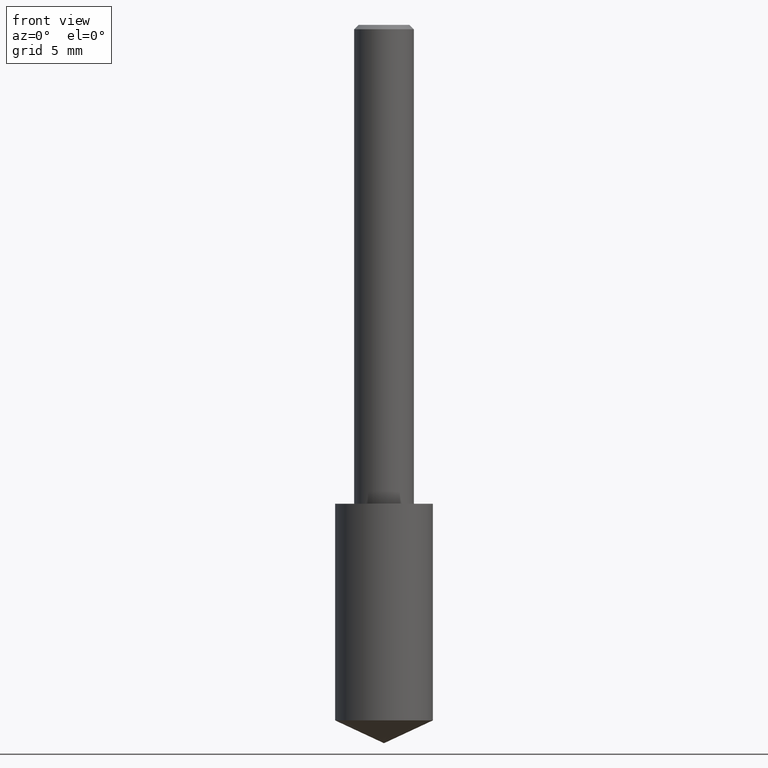
[diagram: clean part render]
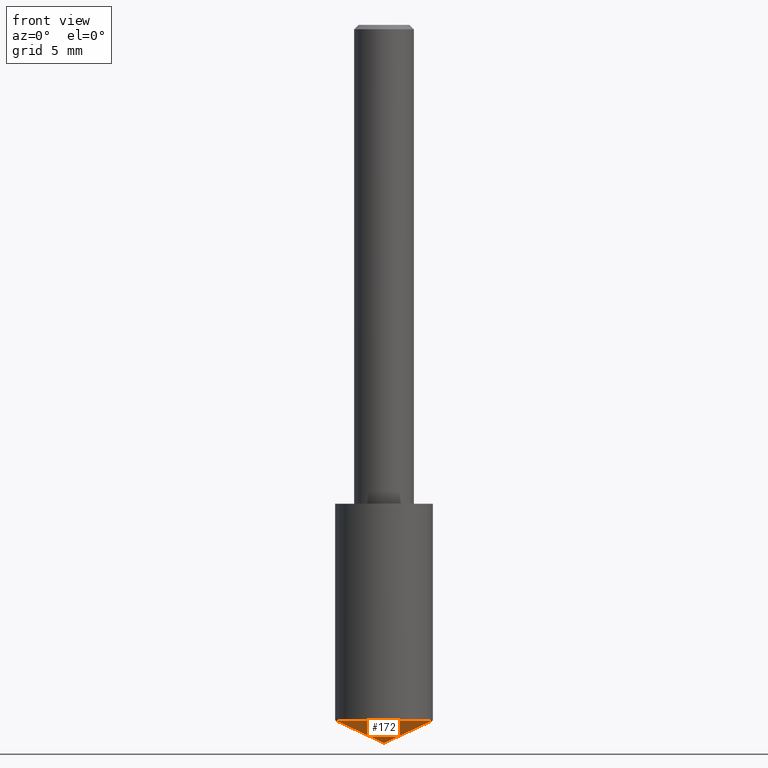
[diagram: same view with one face highlighted and labeled with its STEP entity id]
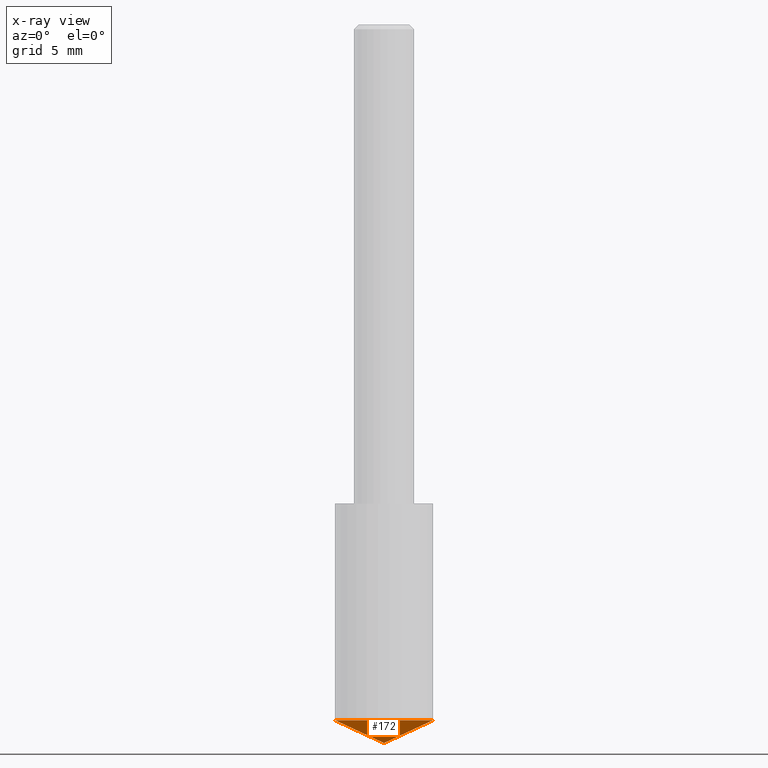
[diagram: x-ray of the same camera — body ghosted, the highlighted face saturated]
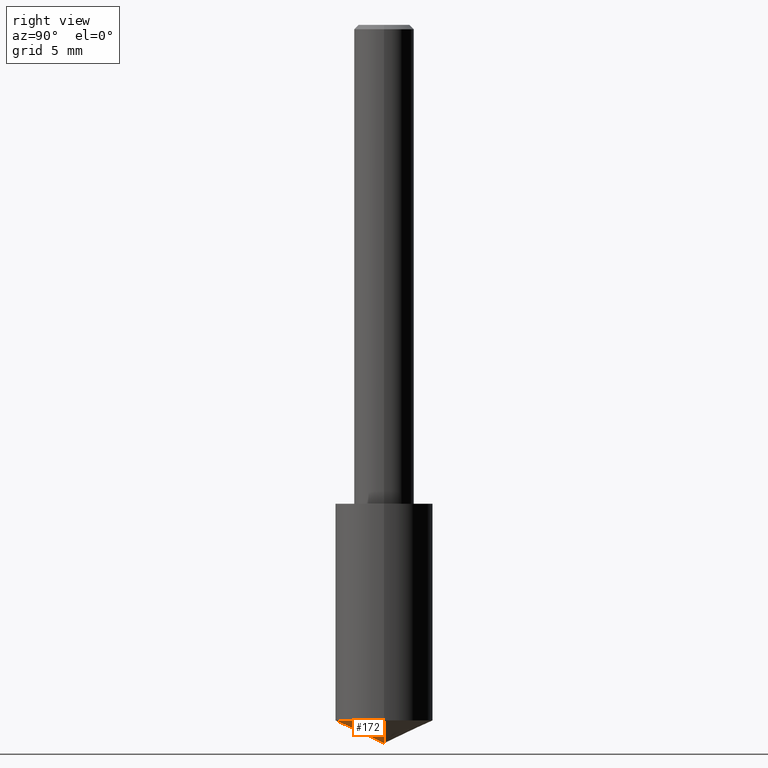
[diagram: same view with one face highlighted and labeled with its STEP entity id]
A machine part, front view. The second image highlights one B-rep face of the part: STEP entity #172.
The next image is the same camera in x-ray: the body ghosted, the highlighted face saturated — about 0% of this face is hidden behind the body in this view.
A second angle (right view) of the same face is appended — the face is thin or edge-on in the first view.
In plain terms, the highlighted conical surface has half-angle 65 deg.
Its self-contained STEP definition (entity closure, byte-faithful):
#9 = CARTESIAN_POINT ( 'NONE',  ( -0.1019999999999999796, -4.346401760155420845E-15, -1.452436618868190976 ) ) ;
#11 = ORIENTED_EDGE ( 'NONE', *, *, #274, .F. ) ;
#14 = VERTEX_POINT ( 'NONE', #284 ) ;
#27 = DIRECTION ( 'NONE',  ( -2.445468806185136597E-29, 3.491481338843145583E-15, 1.000000000000000000 ) ) ;
#29 = DIRECTION ( 'NONE',  ( 0.9063077870366522681, -4.853149677051413500E-15, 0.4226182617406944453 ) ) ;
#45 = ORIENTED_EDGE ( 'NONE', *, *, #93, .T. ) ;
#46 = EDGE_LOOP ( 'NONE', ( #330, #45, #11 ) ) ;
#61 = AXIS2_PLACEMENT_3D ( 'NONE', #291, #27, #238 ) ;
#67 = VERTEX_POINT ( 'NONE', #9 ) ;
#79 = LINE ( 'NONE', #320, #208 ) ;
#90 = DIRECTION ( 'NONE',  ( 1.000000000000000000, -6.982962677686266711E-15, 0.000000000000000000 ) ) ;
#93 = EDGE_CURVE ( 'NONE', #14, #97, #293, .T. ) ;
#96 = EDGE_CURVE ( 'NONE', #14, #67, #79, .T. ) ;
#97 = VERTEX_POINT ( 'NONE', #184 ) ;
#112 = CIRCLE ( 'NONE', #268, 0.1019999999999999934 ) ;
#129 = DIRECTION ( 'NONE',  ( -0.9063077870366522681, 7.915267918739014631E-15, 0.4226182617406944453 ) ) ;
#160 = CARTESIAN_POINT ( 'NONE',  ( 3.668203209277704895E-29, -5.237222008264718177E-15, -1.500000000000000222 ) ) ;
#172 = ADVANCED_FACE ( 'NONE', ( #209 ), #298, .T. ) ;
#177 = VECTOR ( 'NONE', #29, 39.37007874015748854 ) ;
#184 = CARTESIAN_POINT ( 'NONE',  ( 0.1019999999999999796, -5.783417543754722378E-15, -1.452436618868190976 ) ) ;
#208 = VECTOR ( 'NONE', #129, 39.37007874015748854 ) ;
#209 = FACE_OUTER_BOUND ( 'NONE', #46, .T. ) ;
#238 = DIRECTION ( 'NONE',  ( 1.000000000000000000, -6.982962677686266711E-15, 0.000000000000000000 ) ) ;
#245 = DIRECTION ( 'NONE',  ( -2.445468806185136597E-29, 3.491481338843145583E-15, 1.000000000000000000 ) ) ;
#268 = AXIS2_PLACEMENT_3D ( 'NONE', #296, #245, #90 ) ;
#274 = EDGE_CURVE ( 'NONE', #67, #97, #112, .T. ) ;
#284 = CARTESIAN_POINT ( 'NONE',  ( 3.668203209277704895E-29, -5.237222008264718177E-15, -1.500000000000000222 ) ) ;
#291 = CARTESIAN_POINT ( 'NONE',  ( -9.261009624683002666E-28, 1.322226732217803884E-13, 37.87007874015748143 ) ) ;
#293 = LINE ( 'NONE', #160, #177 ) ;
#296 = CARTESIAN_POINT ( 'NONE',  ( 3.551888444403171231E-29, -5.071155350630722890E-15, -1.452436618868190976 ) ) ;
#298 = CONICAL_SURFACE ( 'NONE', #61, 84.42940631927518780, 1.134464013796319781 ) ;
#320 = CARTESIAN_POINT ( 'NONE',  ( 3.668203209277704895E-29, -5.237222008264718177E-15, -1.500000000000000222 ) ) ;
#330 = ORIENTED_EDGE ( 'NONE', *, *, #96, .F. ) ;